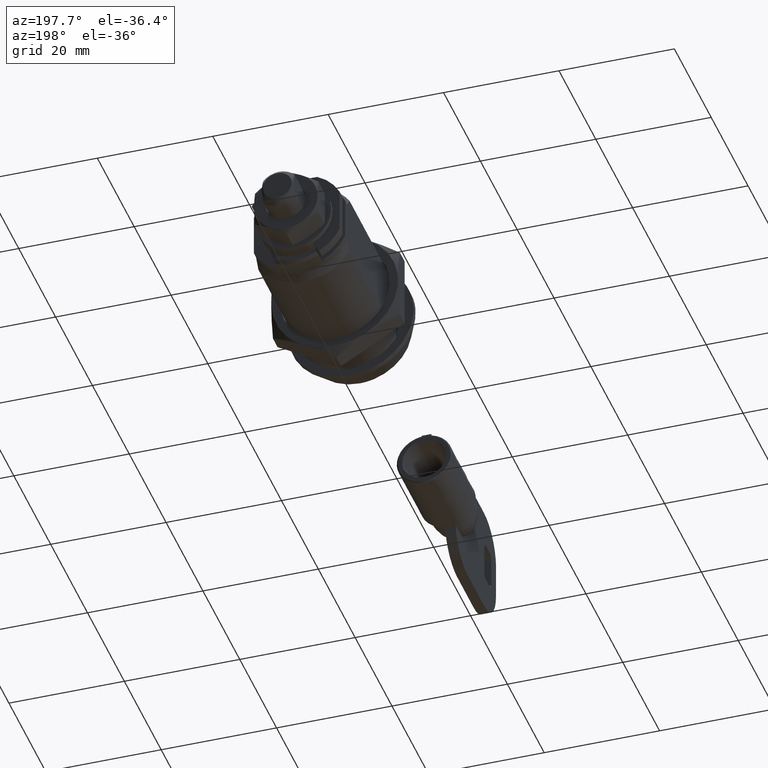
[diagram: clean part render]
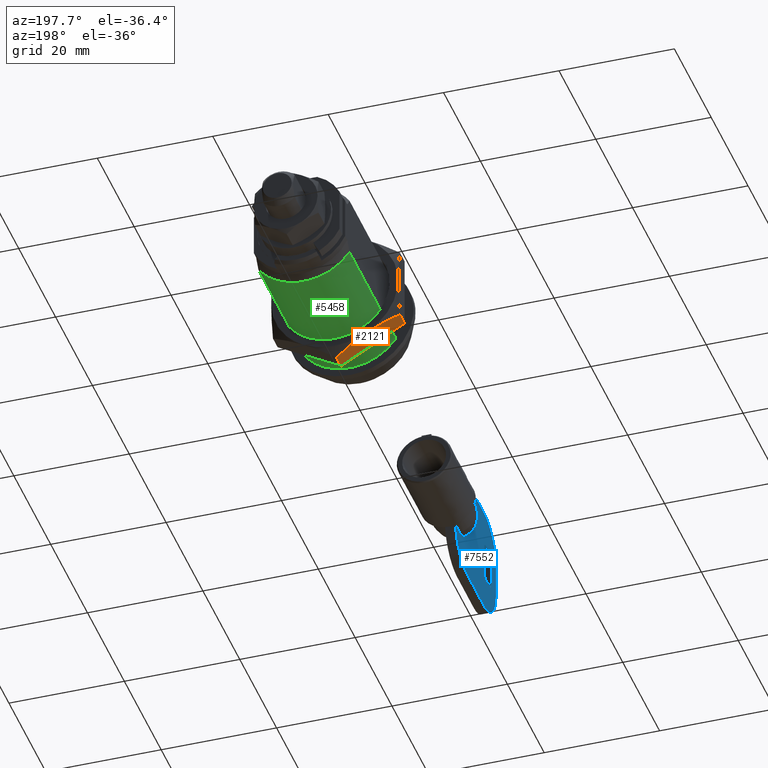
[diagram: same view with three faces highlighted in distinct colors, each labeled with its STEP entity id]
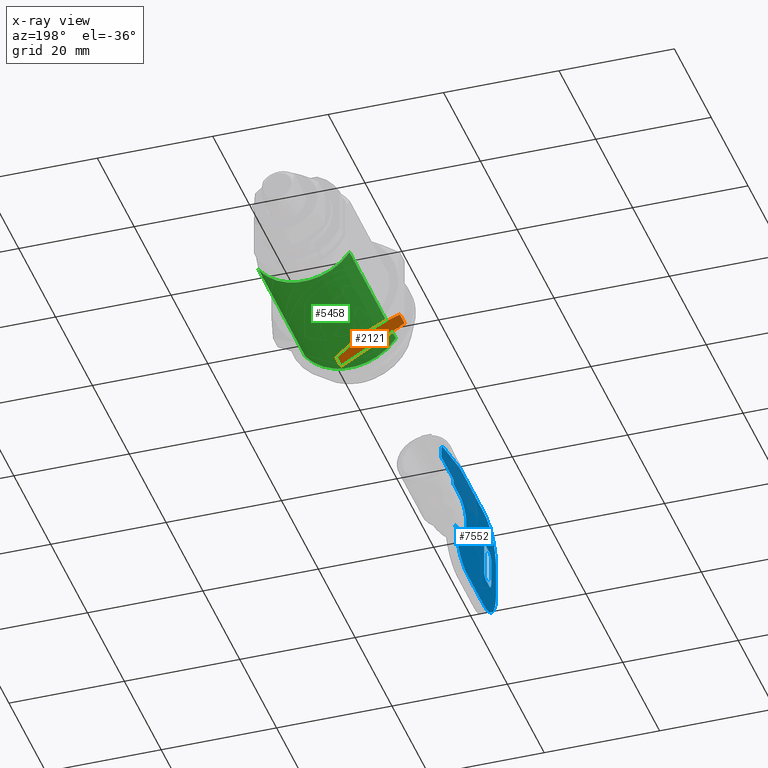
[diagram: x-ray of the same camera — body ghosted, the three highlighted faces saturated]
A machine part, auxiliary view with three faces highlighted in distinct colors.
The next image is the same camera in x-ray (body ghosted, the three faces saturated) — at least one of them is partly hidden behind the body in this view.
Their STEP definitions:

[orange] entity #2121 — the highlighted face is a freeform B-spline surface patch.
#1878=CARTESIAN_POINT('',(12.817520201620400,-0.000013856432649,-12.701697999992540));
#1879=VERTEX_POINT('',#1878);
#1880=CARTESIAN_POINT('',(13.799995999999920,5.500000454123529,-9.526279179440461));
#1881=VERTEX_POINT('',#1880);
#1882=CARTESIAN_POINT('',(12.817520201620400,-0.000013856432649,-12.701697999992540));
#1883=CARTESIAN_POINT('',(13.116867928820771,0.898034183630997,-12.183212375887960));
#1884=CARTESIAN_POINT('',(13.363584567205651,1.802629673879528,-11.660946577784861));
#1885=CARTESIAN_POINT('',(13.619921240175570,3.173672260317278,-10.869378744939070));
#1886=CARTESIAN_POINT('',(13.686364957685070,3.633050336244083,-10.604158012968639));
#1887=CARTESIAN_POINT('',(13.776247209210570,4.557156449554935,-10.070627745810850));
#1888=CARTESIAN_POINT('',(13.799648582112420,5.021889109882368,-9.802315541564576));
#1889=CARTESIAN_POINT('',(13.799994745652141,5.492993368538788,-9.530324702388018));
#1890=CARTESIAN_POINT('',(13.799996021694980,5.496496782102788,-9.528302015524162));
#1891=CARTESIAN_POINT('',(13.799995999999920,5.500000454123529,-9.526279179440461));
#1892=B_SPLINE_CURVE_WITH_KNOTS('',3,(#1882,#1883,#1884,#1885,#1886,#1887,#1888,#1889,#1890,#1891),.UNSPECIFIED.,.F.,.U.,(4,2,2,2,4),(0.0,0.249999999999999,0.374999999999999,0.499999999999999,0.500936467924247),.UNSPECIFIED.);
#1893=EDGE_CURVE('',#1879,#1881,#1892,.T.);
#1968=CARTESIAN_POINT('',(12.817520201620400,11.000016000000020,-6.350835102139629));
#1969=VERTEX_POINT('',#1968);
#1970=CARTESIAN_POINT('',(13.799995999999920,5.500000454123529,-9.526279179440461));
#1971=CARTESIAN_POINT('',(13.799994909690341,5.730332392424128,-9.393296619907787));
#1972=CARTESIAN_POINT('',(13.794385301534810,5.961781325340309,-9.259669160417827));
#1973=CARTESIAN_POINT('',(13.771952051372971,6.426115499075890,-8.991584984275677));
#1974=CARTESIAN_POINT('',(13.754985257553750,6.659222329460428,-8.857000332460691));
#1975=CARTESIAN_POINT('',(13.687823945094101,7.356210174480522,-8.454593131263431));
#1976=CARTESIAN_POINT('',(13.621330478475830,7.817753089410957,-8.188120484750776));
#1977=CARTESIAN_POINT('',(13.364568321768550,9.194164711294210,-7.393446704655329));
#1978=CARTESIAN_POINT('',(13.117241073624060,10.100848313420290,-6.869971244862049));
#1979=CARTESIAN_POINT('',(12.817520201620400,11.000016000000020,-6.350835102139629));
#1980=B_SPLINE_CURVE_WITH_KNOTS('',3,(#1970,#1971,#1972,#1973,#1974,#1975,#1976,#1977,#1978,#1979),.UNSPECIFIED.,.F.,.U.,(4,2,2,2,4),(0.500936467924247,0.562499999999999,0.624999999999999,0.749999999999999,1.0),.UNSPECIFIED.);
#1981=EDGE_CURVE('',#1881,#1969,#1980,.T.);
#2083=CARTESIAN_POINT('',(10.299996000000100,-0.000013856405744,-12.701706000000261));
#2084=VERTEX_POINT('',#2083);
#2090=CARTESIAN_POINT('',(12.817520201620400,-0.000013856432649,-12.701697999992540));
#2091=CARTESIAN_POINT('',(10.299996000000100,-0.000013856405744,-12.701706000000261));
#2092=QUASI_UNIFORM_CURVE('',1,(#2090,#2091),.UNSPECIFIED.,.F.,.U.);
#2093=EDGE_CURVE('',#1879,#2084,#2092,.T.);
#2099=CARTESIAN_POINT('',(10.125171388545279,-0.549465326413018,-13.018931989039180));
#2100=CARTESIAN_POINT('',(10.125171388545279,11.549467765051091,-6.033608942757080));
#2101=CARTESIAN_POINT('',(13.974821331180831,-0.549465326413018,-13.018931989039180));
#2102=CARTESIAN_POINT('',(13.974821331180831,11.549467765051091,-6.033608942757080));
#2103=B_SPLINE_SURFACE_WITH_KNOTS('',1,1,((#2099,#2101),(#2100,#2102)),.UNSPECIFIED.,.F.,.F.,.U.,(2,2),(2,2),(0.0,13.970644939037181),(0.0,3.849649942635546),.UNSPECIFIED.);
#2104=ORIENTED_EDGE('',*,*,#1893,.F.);
#2105=ORIENTED_EDGE('',*,*,#2093,.T.);
#2106=CARTESIAN_POINT('',(10.299996000000100,11.000016000000020,-6.350835102139629));
#2107=VERTEX_POINT('',#2106);
#2108=CARTESIAN_POINT('',(10.299996000000100,11.000016000000020,-6.350835102139629));
#2109=CARTESIAN_POINT('',(10.299996000000100,-0.000013856405744,-12.701706000000261));
#2110=QUASI_UNIFORM_CURVE('',1,(#2108,#2109),.UNSPECIFIED.,.F.,.U.);
#2111=EDGE_CURVE('',#2107,#2084,#2110,.T.);
#2112=ORIENTED_EDGE('',*,*,#2111,.F.);
#2113=CARTESIAN_POINT('',(12.817520201620400,11.000016000000020,-6.350835102139629));
#2114=CARTESIAN_POINT('',(10.299996000000100,11.000016000000020,-6.350835102139629));
#2115=QUASI_UNIFORM_CURVE('',1,(#2113,#2114),.UNSPECIFIED.,.F.,.U.);
#2116=EDGE_CURVE('',#1969,#2107,#2115,.T.);
#2117=ORIENTED_EDGE('',*,*,#2116,.F.);
#2118=ORIENTED_EDGE('',*,*,#1981,.F.);
#2119=EDGE_LOOP('',(#2104,#2105,#2112,#2117,#2118));
#2120=FACE_OUTER_BOUND('',#2119,.T.);
#2121=ADVANCED_FACE('',(#2120),#2103,.T.);

[blue] entity #7552 — the highlighted face is a freeform B-spline surface patch.
#6007=CARTESIAN_POINT('',(-47.788700000000013,0.900000000000000,4.714857876982411));
#6008=VERTEX_POINT('',#6007);
#6028=CARTESIAN_POINT('',(-41.388702000000002,0.900000000000000,4.714857876982411));
#6029=VERTEX_POINT('',#6028);
#6030=CARTESIAN_POINT('',(-47.788700000000013,0.900000000000000,4.714857876982411));
#6031=CARTESIAN_POINT('',(-41.388702000000002,0.900000000000000,4.714857876982411));
#6032=QUASI_UNIFORM_CURVE('',1,(#6030,#6031),.UNSPECIFIED.,.F.,.U.);
#6033=EDGE_CURVE('',#6008,#6029,#6032,.T.);
#6353=CARTESIAN_POINT('',(-64.588699000000005,0.900000000000012,2.500000000000000));
#6354=VERTEX_POINT('',#6353);
#6355=CARTESIAN_POINT('',(-65.588698808013802,0.900000000000012,3.500000000000000));
#6356=VERTEX_POINT('',#6355);
#6357=CARTESIAN_POINT('',(-64.588699000000005,0.900000000000012,2.500000000000000));
#6358=CARTESIAN_POINT('',(-64.588699000000005,0.900000000000012,3.499999808013813));
#6359=CARTESIAN_POINT('',(-65.588698808013802,0.900000000000012,3.499999999999981));
#6367=(BOUNDED_CURVE()B_SPLINE_CURVE(2,(#6357,#6358,#6359),.UNSPECIFIED.,.F.,.U.)CURVE()GEOMETRIC_REPRESENTATION_ITEM()QUASI_UNIFORM_CURVE()RATIONAL_B_SPLINE_CURVE((1.0,0.707106849063918,1.0))REPRESENTATION_ITEM(''));
#6368=EDGE_CURVE('',#6354,#6356,#6367,.T.);
#6405=CARTESIAN_POINT('',(-64.588699000000005,0.900000000000012,-2.500000000000200));
#6406=VERTEX_POINT('',#6405);
#6407=CARTESIAN_POINT('',(-64.588699000000005,0.900000000000012,-2.500000000000200));
#6408=CARTESIAN_POINT('',(-64.588699000000005,0.900000000000012,2.500000000000000));
#6409=QUASI_UNIFORM_CURVE('',1,(#6407,#6408),.UNSPECIFIED.,.F.,.U.);
#6410=EDGE_CURVE('',#6406,#6354,#6409,.T.);
#6442=CARTESIAN_POINT('',(-65.588699000000005,0.900000000000012,-3.500000000000200));
#6443=VERTEX_POINT('',#6442);
#6444=CARTESIAN_POINT('',(-65.588699000000005,0.900000000000012,-3.500000000000200));
#6445=CARTESIAN_POINT('',(-64.588699000000005,0.900000000000012,-3.500000000000200));
#6446=CARTESIAN_POINT('',(-64.588699000000005,0.900000000000012,-2.500000000000200));
#6454=(BOUNDED_CURVE()B_SPLINE_CURVE(2,(#6444,#6445,#6446),.UNSPECIFIED.,.F.,.U.)CURVE()GEOMETRIC_REPRESENTATION_ITEM()QUASI_UNIFORM_CURVE()RATIONAL_B_SPLINE_CURVE((1.0,0.707106781186548,1.0))REPRESENTATION_ITEM(''));
#6455=EDGE_CURVE('',#6443,#6406,#6454,.T.);
#6486=CARTESIAN_POINT('',(-67.388702471238901,0.900000000000012,-3.500000000000090));
#6487=VERTEX_POINT('',#6486);
#6488=CARTESIAN_POINT('',(-67.388702471238901,0.900000000000012,-3.500000000000090));
#6489=CARTESIAN_POINT('',(-65.588699000000005,0.900000000000012,-3.500000000000200));
#6490=QUASI_UNIFORM_CURVE('',1,(#6488,#6489),.UNSPECIFIED.,.F.,.U.);
#6491=EDGE_CURVE('',#6487,#6443,#6490,.T.);
#6523=CARTESIAN_POINT('',(-68.388701999999995,0.900000000000012,-2.500000000000200));
#6524=VERTEX_POINT('',#6523);
#6525=CARTESIAN_POINT('',(-68.388701999999995,0.900000000000012,-2.500000000000200));
#6526=CARTESIAN_POINT('',(-68.388701999999981,0.900000000000012,-3.499999528761403));
#6527=CARTESIAN_POINT('',(-67.388702471238901,0.900000000000012,-3.500000000000089));
#6535=(BOUNDED_CURVE()B_SPLINE_CURVE(2,(#6525,#6526,#6527),.UNSPECIFIED.,.F.,.U.)CURVE()GEOMETRIC_REPRESENTATION_ITEM()QUASI_UNIFORM_CURVE()RATIONAL_B_SPLINE_CURVE((1.0,0.707106947794642,1.0))REPRESENTATION_ITEM(''));
#6536=EDGE_CURVE('',#6524,#6487,#6535,.T.);
#6567=CARTESIAN_POINT('',(-68.388701999999995,0.900000000000012,2.500000383972435));
#6568=VERTEX_POINT('',#6567);
#6569=CARTESIAN_POINT('',(-68.388701999999995,0.900000000000012,2.500000383972435));
#6570=CARTESIAN_POINT('',(-68.388701999999995,0.900000000000012,-2.500000000000200));
#6571=QUASI_UNIFORM_CURVE('',1,(#6569,#6570),.UNSPECIFIED.,.F.,.U.);
#6572=EDGE_CURVE('',#6568,#6524,#6571,.T.);
#6604=CARTESIAN_POINT('',(-67.388701808013806,0.900000000000012,3.500000000000000));
#6605=VERTEX_POINT('',#6604);
#6606=CARTESIAN_POINT('',(-67.388701808013806,0.900000000000012,3.499999999999981));
#6607=CARTESIAN_POINT('',(-68.388701616027546,0.900000000000012,3.500000191986135));
#6608=CARTESIAN_POINT('',(-68.388701999999924,0.900000000000012,2.500000383972435));
#6616=(BOUNDED_CURVE()B_SPLINE_CURVE(2,(#6606,#6607,#6608),.UNSPECIFIED.,.F.,.U.)CURVE()GEOMETRIC_REPRESENTATION_ITEM()QUASI_UNIFORM_CURVE()RATIONAL_B_SPLINE_CURVE((1.0,0.707106849063932,1.0))REPRESENTATION_ITEM(''));
#6617=EDGE_CURVE('',#6605,#6568,#6616,.T.);
#6648=CARTESIAN_POINT('',(-65.588698808013802,0.900000000000012,3.500000000000000));
#6649=CARTESIAN_POINT('',(-67.388701808013806,0.900000000000012,3.500000000000000));
#6650=QUASI_UNIFORM_CURVE('',1,(#6648,#6649),.UNSPECIFIED.,.F.,.U.);
#6651=EDGE_CURVE('',#6356,#6605,#6650,.T.);
#6668=CARTESIAN_POINT('',(-49.051309351752103,0.900000000000012,-3.900000912138290));
#6669=VERTEX_POINT('',#6668);
#6670=CARTESIAN_POINT('',(-49.051310482507802,0.900000000000000,-3.794727025760245));
#6671=VERTEX_POINT('',#6670);
#6672=CARTESIAN_POINT('',(-49.051309351752103,0.900000000000012,-3.900000912138290));
#6673=CARTESIAN_POINT('',(-49.051310482507802,0.900000000000000,-3.794727025760245));
#6674=QUASI_UNIFORM_CURVE('',1,(#6672,#6673),.UNSPECIFIED.,.F.,.U.);
#6675=EDGE_CURVE('',#6669,#6671,#6674,.T.);
#6731=CARTESIAN_POINT('',(-55.488700000000001,0.900000000000012,-9.500000000000000));
#6732=VERTEX_POINT('',#6731);
#6738=CARTESIAN_POINT('',(-55.488700000000001,0.900000000000012,-9.500000000000000));
#6739=CARTESIAN_POINT('',(-49.834235938383991,0.900000000000012,-9.499999999999998));
#6740=CARTESIAN_POINT('',(-49.051309351752053,0.900000000000012,-3.900000912138298));
#6748=(BOUNDED_CURVE()B_SPLINE_CURVE(2,(#6738,#6739,#6740),.UNSPECIFIED.,.F.,.U.)CURVE()GEOMETRIC_REPRESENTATION_ITEM()QUASI_UNIFORM_CURVE()RATIONAL_B_SPLINE_CURVE((1.0,0.754473882513672,1.0))REPRESENTATION_ITEM(''));
#6749=EDGE_CURVE('',#6732,#6669,#6748,.T.);
#6772=CARTESIAN_POINT('',(-64.488699886553590,0.900000000000012,-9.500000000000000));
#6773=VERTEX_POINT('',#6772);
#6779=CARTESIAN_POINT('',(-64.488699886553590,0.900000000000012,-9.500000000000000));
#6780=CARTESIAN_POINT('',(-55.488700000000001,0.900000000000012,-9.500000000000000));
#6781=QUASI_UNIFORM_CURVE('',1,(#6779,#6780),.UNSPECIFIED.,.F.,.U.);
#6782=EDGE_CURVE('',#6773,#6732,#6781,.T.);
#6819=CARTESIAN_POINT('',(-70.988700000000009,0.900000000000012,-3.0));
#6820=VERTEX_POINT('',#6819);
#6826=CARTESIAN_POINT('',(-70.988700000000009,0.900000000000012,-3.0));
#6827=CARTESIAN_POINT('',(-70.988700000000009,0.900000000000012,-5.692388188652800));
#6828=CARTESIAN_POINT('',(-69.084894037603192,0.900000000000012,-7.596194117821920));
#6829=CARTESIAN_POINT('',(-67.181088075206389,0.900000000000012,-9.500000046991037));
#6830=CARTESIAN_POINT('',(-64.488699886553590,0.900000000000012,-9.499999999999998));
#6838=(BOUNDED_CURVE()B_SPLINE_CURVE(2,(#6826,#6827,#6828,#6829,#6830),.UNSPECIFIED.,.F.,.U.)B_SPLINE_CURVE_WITH_KNOTS((3,2,3),(0.0,0.500000000000000,1.0),.UNSPECIFIED.)CURVE()GEOMETRIC_REPRESENTATION_ITEM()RATIONAL_B_SPLINE_CURVE((1.0,0.923879530841515,1.0,0.923879530841515,1.0))REPRESENTATION_ITEM(''));
#6839=EDGE_CURVE('',#6820,#6773,#6838,.T.);
#6857=CARTESIAN_POINT('',(-70.988700000000009,0.900000000000012,3.000002495820830));
#6858=VERTEX_POINT('',#6857);
#6864=CARTESIAN_POINT('',(-70.988700000000009,0.900000000000012,3.000002495820830));
#6865=CARTESIAN_POINT('',(-70.988700000000009,0.900000000000012,-3.0));
#6866=QUASI_UNIFORM_CURVE('',1,(#6864,#6865),.UNSPECIFIED.,.F.,.U.);
#6867=EDGE_CURVE('',#6858,#6820,#6866,.T.);
#6902=CARTESIAN_POINT('',(-64.488699999999994,0.900000000000012,9.500000000000000));
#6903=VERTEX_POINT('',#6902);
#6909=CARTESIAN_POINT('',(-64.488699999999994,0.900000000000012,9.500000000000000));
#6910=CARTESIAN_POINT('',(-70.988697504179655,0.900000000000012,9.500000000000000));
#6911=CARTESIAN_POINT('',(-70.988700000000009,0.900000000000012,3.000002495820830));
#6919=(BOUNDED_CURVE()B_SPLINE_CURVE(2,(#6909,#6910,#6911),.UNSPECIFIED.,.F.,.U.)CURVE()GEOMETRIC_REPRESENTATION_ITEM()QUASI_UNIFORM_CURVE()RATIONAL_B_SPLINE_CURVE((1.0,0.707106916941291,1.0))REPRESENTATION_ITEM(''));
#6920=EDGE_CURVE('',#6903,#6858,#6919,.T.);
#6938=CARTESIAN_POINT('',(-51.488700000000001,0.900000000000012,9.500000000000000));
#6939=VERTEX_POINT('',#6938);
#6945=CARTESIAN_POINT('',(-51.488700000000001,0.900000000000012,9.500000000000000));
#6946=CARTESIAN_POINT('',(-64.488699999999994,0.900000000000012,9.500000000000000));
#6947=QUASI_UNIFORM_CURVE('',1,(#6945,#6946),.UNSPECIFIED.,.F.,.U.);
#6948=EDGE_CURVE('',#6939,#6903,#6947,.T.);
#6966=CARTESIAN_POINT('',(-42.318793999999997,0.900000000000012,7.382996000000000));
#6967=VERTEX_POINT('',#6966);
#6973=CARTESIAN_POINT('',(-42.318793999999997,0.900000000000012,7.382996000000000));
#6974=CARTESIAN_POINT('',(-51.488700000000001,0.900000000000012,9.500000000000000));
#6975=QUASI_UNIFORM_CURVE('',1,(#6973,#6974),.UNSPECIFIED.,.F.,.U.);
#6976=EDGE_CURVE('',#6967,#6939,#6975,.T.);
#7011=CARTESIAN_POINT('',(-41.388702000000002,0.900000000000012,6.211027305242780));
#7012=VERTEX_POINT('',#7011);
#7018=CARTESIAN_POINT('',(-41.388702000000002,0.900000000000012,6.211027305242780));
#7019=CARTESIAN_POINT('',(-41.386562576787021,0.900000000000012,7.167777037900753));
#7020=CARTESIAN_POINT('',(-42.318793999999997,0.900000000000012,7.382995999999991));
#7028=(BOUNDED_CURVE()B_SPLINE_CURVE(2,(#7018,#7019,#7020),.UNSPECIFIED.,.F.,.U.)CURVE()GEOMETRIC_REPRESENTATION_ITEM()QUASI_UNIFORM_CURVE()RATIONAL_B_SPLINE_CURVE((1.0,0.781910505873954,1.0))REPRESENTATION_ITEM(''));
#7029=EDGE_CURVE('',#7012,#6967,#7028,.T.);
#7046=CARTESIAN_POINT('',(-41.388702000000002,0.900000000000000,4.714857876982411));
#7047=CARTESIAN_POINT('',(-41.388702000000002,0.900000000000012,6.211027305242780));
#7048=QUASI_UNIFORM_CURVE('',1,(#7046,#7047),.UNSPECIFIED.,.F.,.U.);
#7049=EDGE_CURVE('',#6029,#7012,#7048,.T.);
#7233=CARTESIAN_POINT('',(-47.988700000000001,0.900000000000000,4.511085190964931));
#7234=VERTEX_POINT('',#7233);
#7256=CARTESIAN_POINT('',(-47.988700000000001,0.900000000000000,4.511085190964931));
#7257=CARTESIAN_POINT('',(-47.922061814674052,0.900000000000000,4.579036657156502));
#7258=CARTESIAN_POINT('',(-47.855393939864541,0.900000000000000,4.646959730447518));
#7259=CARTESIAN_POINT('',(-47.788699999999999,0.900000000000000,4.714857876982411));
#7260=QUASI_UNIFORM_CURVE('',3,(#7256,#7257,#7258,#7259),.UNSPECIFIED.,.F.,.U.);
#7261=EDGE_CURVE('',#7234,#6008,#7260,.T.);
#7281=CARTESIAN_POINT('',(-47.988700000000001,0.900000000000000,3.794727025760245));
#7282=VERTEX_POINT('',#7281);
#7304=CARTESIAN_POINT('',(-47.988700000000001,0.900000000000000,3.794727025760245));
#7305=CARTESIAN_POINT('',(-47.988700000000001,0.900000000000000,4.511085190964931));
#7306=QUASI_UNIFORM_CURVE('',1,(#7304,#7305),.UNSPECIFIED.,.F.,.U.);
#7307=EDGE_CURVE('',#7282,#7234,#7306,.T.);
#7344=CARTESIAN_POINT('',(-51.295544049972499,0.900000000000000,3.794727025760245));
#7345=VERTEX_POINT('',#7344);
#7346=CARTESIAN_POINT('',(-51.295544049972499,0.900000000000000,-3.794727025760245));
#7347=VERTEX_POINT('',#7346);
#7363=CARTESIAN_POINT('',(-51.295544049972499,0.900000000000000,3.794727025760245));
#7364=CARTESIAN_POINT('',(-47.988700000000001,0.900000000000000,3.794727025760245));
#7365=QUASI_UNIFORM_CURVE('',1,(#7363,#7364),.UNSPECIFIED.,.F.,.U.);
#7366=EDGE_CURVE('',#7345,#7282,#7365,.T.);
#7382=CARTESIAN_POINT('',(-49.051310482507802,0.900000000000000,-3.794727025760245));
#7383=CARTESIAN_POINT('',(-51.295544049972499,0.900000000000000,-3.794727025760245));
#7384=QUASI_UNIFORM_CURVE('',1,(#7382,#7383),.UNSPECIFIED.,.F.,.U.);
#7385=EDGE_CURVE('',#6671,#7347,#7384,.T.);
#7418=CARTESIAN_POINT('',(-54.788702999999998,0.900000000000000,1.466287829861504));
#7419=VERTEX_POINT('',#7418);
#7420=CARTESIAN_POINT('',(-51.295544049972499,0.900000000000000,3.794727025760246));
#7421=CARTESIAN_POINT('',(-53.815131056798968,0.900000000000000,3.790184770017806));
#7422=CARTESIAN_POINT('',(-54.788702999999998,0.900000000000000,1.466287829861505));
#7430=(BOUNDED_CURVE()B_SPLINE_CURVE(2,(#7420,#7421,#7422),.UNSPECIFIED.,.F.,.U.)CURVE()GEOMETRIC_REPRESENTATION_ITEM()QUASI_UNIFORM_CURVE()RATIONAL_B_SPLINE_CURVE((1.0,0.833085499197415,1.0))REPRESENTATION_ITEM(''));
#7431=EDGE_CURVE('',#7345,#7419,#7430,.T.);
#7434=CARTESIAN_POINT('',(-54.788702999999998,0.900000000000000,-1.466287829861514));
#7435=VERTEX_POINT('',#7434);
#7436=CARTESIAN_POINT('',(-54.788702999999998,0.900000000000000,-1.466287829861513));
#7437=CARTESIAN_POINT('',(-53.815131056798975,0.900000000000000,-3.790184770017823));
#7438=CARTESIAN_POINT('',(-51.295544049972499,0.900000000000000,-3.794727025760265));
#7446=(BOUNDED_CURVE()B_SPLINE_CURVE(2,(#7436,#7437,#7438),.UNSPECIFIED.,.F.,.U.)CURVE()GEOMETRIC_REPRESENTATION_ITEM()QUASI_UNIFORM_CURVE()RATIONAL_B_SPLINE_CURVE((1.0,0.833085499197414,1.0))REPRESENTATION_ITEM(''));
#7447=EDGE_CURVE('',#7435,#7347,#7446,.T.);
#7473=CARTESIAN_POINT('',(-54.788702999999998,0.900000000000000,-1.466287829861514));
#7474=CARTESIAN_POINT('',(-54.788702999999998,0.900000000000000,1.466287829861504));
#7475=QUASI_UNIFORM_CURVE('',1,(#7473,#7474),.UNSPECIFIED.,.F.,.U.);
#7476=EDGE_CURVE('',#7435,#7419,#7475,.T.);
#7517=CARTESIAN_POINT('',(-72.467220848431907,0.900000000000000,-10.449049963174311));
#7518=CARTESIAN_POINT('',(-39.910183533369562,0.900000000000000,-10.449049963174311));
#7519=CARTESIAN_POINT('',(-72.467220848431907,0.900000000000000,10.449050472794021));
#7520=CARTESIAN_POINT('',(-39.910183533369562,0.900000000000000,10.449050472794021));
#7521=B_SPLINE_SURFACE_WITH_KNOTS('',1,1,((#7517,#7519),(#7518,#7520)),.UNSPECIFIED.,.F.,.F.,.U.,(2,2),(2,2),(0.0,32.557037315062352),(0.0,20.898100435968342),.UNSPECIFIED.);
#7522=ORIENTED_EDGE('',*,*,#7385,.F.);
#7523=ORIENTED_EDGE('',*,*,#6675,.F.);
#7524=ORIENTED_EDGE('',*,*,#6749,.F.);
#7525=ORIENTED_EDGE('',*,*,#6782,.F.);
#7526=ORIENTED_EDGE('',*,*,#6839,.F.);
#7527=ORIENTED_EDGE('',*,*,#6867,.F.);
#7528=ORIENTED_EDGE('',*,*,#6920,.F.);
#7529=ORIENTED_EDGE('',*,*,#6948,.F.);
#7530=ORIENTED_EDGE('',*,*,#6976,.F.);
#7531=ORIENTED_EDGE('',*,*,#7029,.F.);
#7532=ORIENTED_EDGE('',*,*,#7049,.F.);
#7533=ORIENTED_EDGE('',*,*,#6033,.F.);
#7534=ORIENTED_EDGE('',*,*,#7261,.F.);
#7535=ORIENTED_EDGE('',*,*,#7307,.F.);
#7536=ORIENTED_EDGE('',*,*,#7366,.F.);
#7537=ORIENTED_EDGE('',*,*,#7431,.T.);
#7538=ORIENTED_EDGE('',*,*,#7476,.F.);
#7539=ORIENTED_EDGE('',*,*,#7447,.T.);
#7540=EDGE_LOOP('',(#7522,#7523,#7524,#7525,#7526,#7527,#7528,#7529,#7530,#7531,#7532,#7533,#7534,#7535,#7536,#7537,#7538,#7539));
#7541=FACE_OUTER_BOUND('',#7540,.T.);
#7542=ORIENTED_EDGE('',*,*,#6651,.T.);
#7543=ORIENTED_EDGE('',*,*,#6617,.T.);
#7544=ORIENTED_EDGE('',*,*,#6572,.T.);
#7545=ORIENTED_EDGE('',*,*,#6536,.T.);
#7546=ORIENTED_EDGE('',*,*,#6491,.T.);
#7547=ORIENTED_EDGE('',*,*,#6455,.T.);
#7548=ORIENTED_EDGE('',*,*,#6410,.T.);
#7549=ORIENTED_EDGE('',*,*,#6368,.T.);
#7550=EDGE_LOOP('',(#7542,#7543,#7544,#7545,#7546,#7547,#7548,#7549));
#7551=FACE_BOUND('',#7550,.T.);
#7552=ADVANCED_FACE('',(#7541,#7551),#7521,.F.);

[green] entity #5458 — the highlighted face is a freeform B-spline surface patch.
#4686=CARTESIAN_POINT('',(5.299996000000000,-7.899994258074051,-5.276370980361120));
#4687=VERTEX_POINT('',#4686);
#4693=CARTESIAN_POINT('',(30.479998525006049,-7.899994258074051,-5.276370980361120));
#4694=VERTEX_POINT('',#4693);
#4695=CARTESIAN_POINT('',(30.479998525006049,-7.899994258074051,-5.276370980361120));
#4696=CARTESIAN_POINT('',(5.299996000000000,-7.899994258074051,-5.276370980361120));
#4697=QUASI_UNIFORM_CURVE('',1,(#4695,#4696),.UNSPECIFIED.,.F.,.U.);
#4698=EDGE_CURVE('',#4694,#4687,#4697,.T.);
#4753=CARTESIAN_POINT('',(30.479998525006049,7.900009452898890,-5.276348229989010));
#4754=VERTEX_POINT('',#4753);
#4755=CARTESIAN_POINT('',(5.299996000000000,7.900009452898890,-5.276348229989010));
#4756=VERTEX_POINT('',#4755);
#4757=CARTESIAN_POINT('',(30.479998525006049,7.900009452898890,-5.276348229989010));
#4758=CARTESIAN_POINT('',(5.299996000000000,7.900009452898890,-5.276348229989010));
#4759=QUASI_UNIFORM_CURVE('',1,(#4757,#4758),.UNSPECIFIED.,.F.,.U.);
#4760=EDGE_CURVE('',#4754,#4756,#4759,.T.);
#5203=CARTESIAN_POINT('',(5.299996000000000,7.900009452898890,-5.276348229989010));
#5204=CARTESIAN_POINT('',(5.299996000000000,5.079073720357179,-9.499993131262530));
#5205=CARTESIAN_POINT('',(5.299996000000000,0.000013679018635,-9.500000444583968));
#5206=CARTESIAN_POINT('',(5.299996000000000,-5.079046362319912,-9.500007757905411));
#5207=CARTESIAN_POINT('',(5.299996000000000,-7.899994258074051,-5.276370980361120));
#5215=(BOUNDED_CURVE()B_SPLINE_CURVE(2,(#5203,#5204,#5205,#5206,#5207),.UNSPECIFIED.,.F.,.U.)B_SPLINE_CURVE_WITH_KNOTS((3,2,3),(0.0,0.500000000000000,1.0),.UNSPECIFIED.)CURVE()GEOMETRIC_REPRESENTATION_ITEM()RATIONAL_B_SPLINE_CURVE((1.0,0.881874785394596,1.0,0.881874785394596,1.0))REPRESENTATION_ITEM(''));
#5216=EDGE_CURVE('',#4756,#4687,#5215,.T.);
#5380=CARTESIAN_POINT('',(30.479998525006049,7.900009452898890,-5.276348229989010));
#5381=CARTESIAN_POINT('',(30.479998525006049,5.079073720357179,-9.499993131262530));
#5382=CARTESIAN_POINT('',(30.479998525006049,0.000013679018635,-9.500000444583968));
#5383=CARTESIAN_POINT('',(30.479998525006049,-5.079046362319912,-9.500007757905411));
#5384=CARTESIAN_POINT('',(30.479998525006049,-7.899994258074051,-5.276370980361120));
#5392=(BOUNDED_CURVE()B_SPLINE_CURVE(2,(#5380,#5381,#5382,#5383,#5384),.UNSPECIFIED.,.F.,.U.)B_SPLINE_CURVE_WITH_KNOTS((3,2,3),(0.0,0.500000000000000,1.0),.UNSPECIFIED.)CURVE()GEOMETRIC_REPRESENTATION_ITEM()RATIONAL_B_SPLINE_CURVE((1.0,0.881874785394596,1.0,0.881874785394596,1.0))REPRESENTATION_ITEM(''));
#5393=EDGE_CURVE('',#4754,#4694,#5392,.T.);
#5438=CARTESIAN_POINT('',(31.109498588131210,-8.077353928233450,-5.000637211201845));
#5439=CARTESIAN_POINT('',(4.654758435296721,-8.077353928233450,-5.000637211201845));
#5440=CARTESIAN_POINT('',(31.109498588131217,0.412043438353593,-18.713263076907488));
#5441=CARTESIAN_POINT('',(4.654758435296722,0.412043438353593,-18.713263076907488));
#5442=CARTESIAN_POINT('',(31.109498588131210,8.289634743713842,-4.640255899820317));
#5443=CARTESIAN_POINT('',(4.654758435296721,8.289634743713842,-4.640255899820317));
#5451=(BOUNDED_SURFACE()B_SPLINE_SURFACE(1,2,((#5438,#5440,#5442),(#5439,#5441,#5443)),.UNSPECIFIED.,.F.,.F.,.U.)B_SPLINE_SURFACE_WITH_KNOTS((2,2),(3,3),(0.0,26.454740152834489),(0.0,21.718791606067271),.UNSPECIFIED.)GEOMETRIC_REPRESENTATION_ITEM()RATIONAL_B_SPLINE_SURFACE(((1.0,0.507538362960704,1.0),(1.0,0.507538362960704,1.0)))REPRESENTATION_ITEM('')SURFACE());
#5452=ORIENTED_EDGE('',*,*,#5393,.T.);
#5453=ORIENTED_EDGE('',*,*,#4698,.T.);
#5454=ORIENTED_EDGE('',*,*,#5216,.F.);
#5455=ORIENTED_EDGE('',*,*,#4760,.F.);
#5456=EDGE_LOOP('',(#5452,#5453,#5454,#5455));
#5457=FACE_OUTER_BOUND('',#5456,.T.);
#5458=ADVANCED_FACE('',(#5457),#5451,.T.);